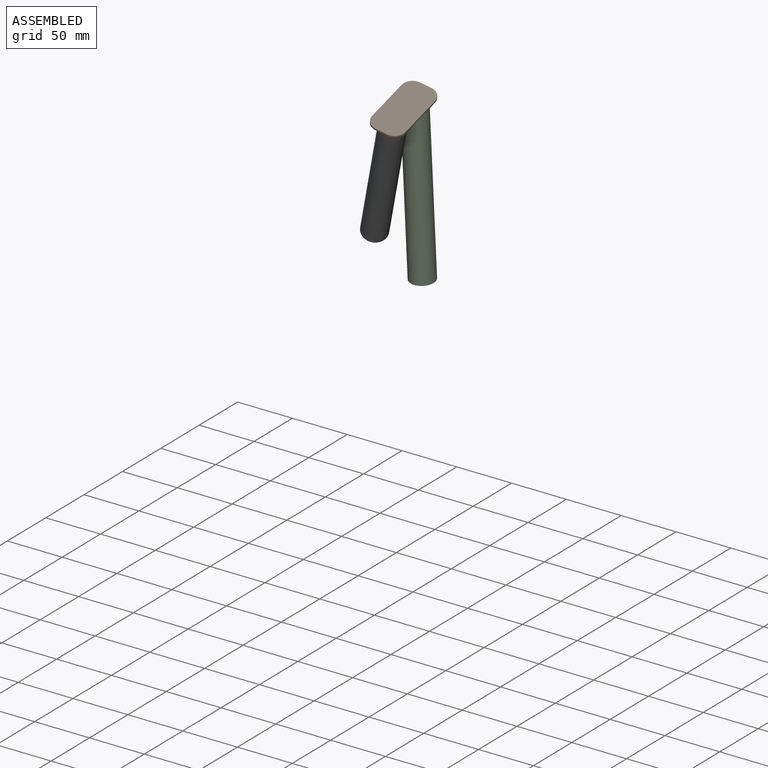
[diagram: assembled view]
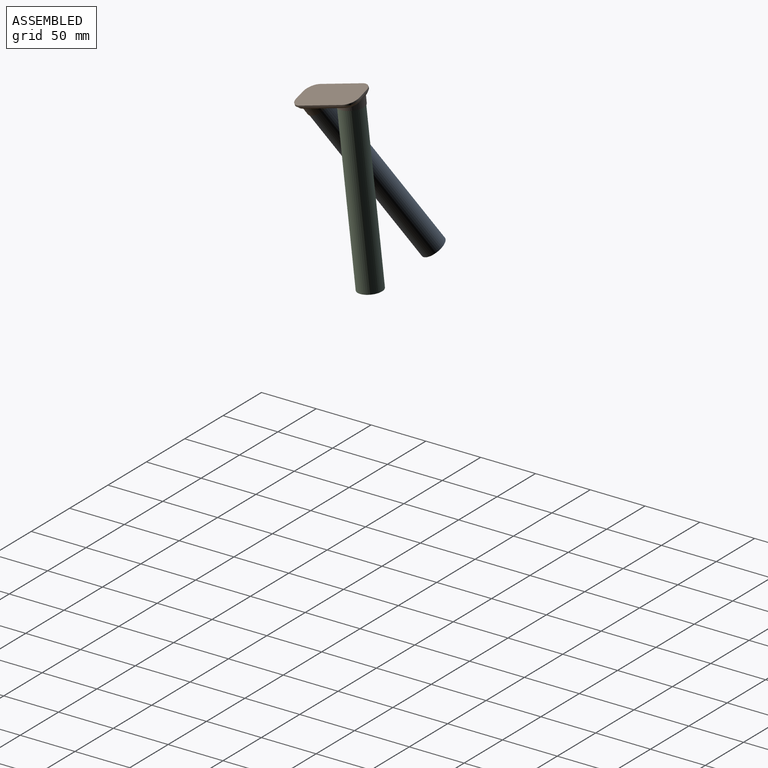
[diagram: assembled view, second angle]
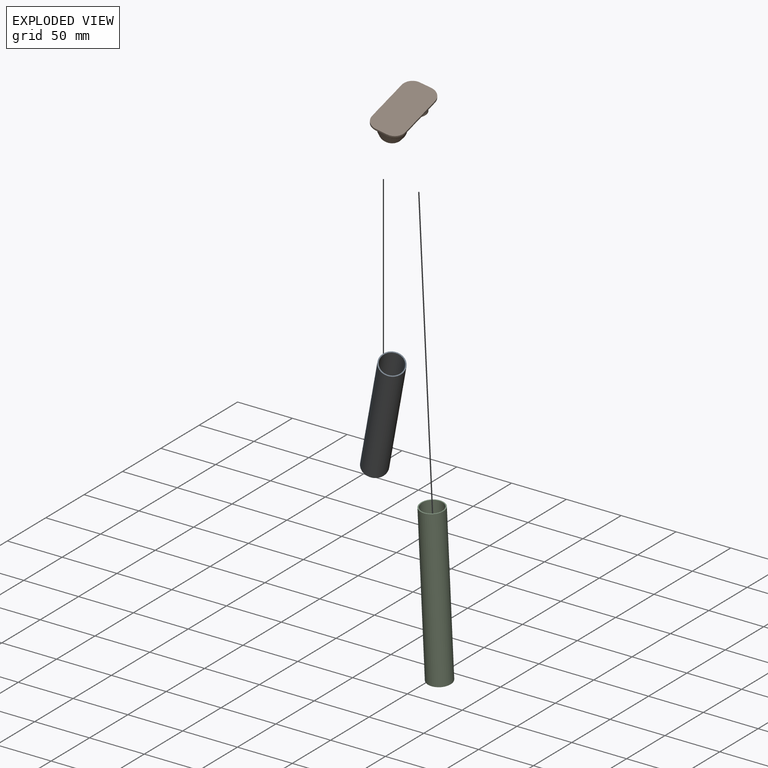
[diagram: exploded view]
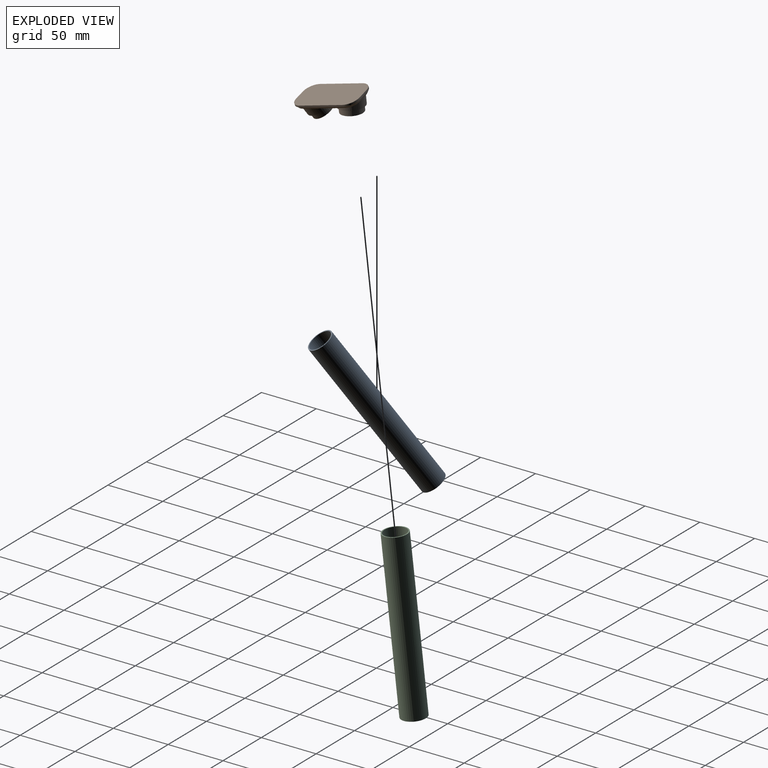
[diagram: exploded view, second angle]
ASSEMBLY  parts=3 mates=2
PART A: 4 faces, bbox 22x22x150 mm
  f0: cylinder r=10mm len=150mm, axis (0,0,-1), area 9424.8mm2, adj f2,f3
  f1: cylinder r=11mm len=150mm, axis (0,0,-1), area 10367.3mm2, adj f2,f3
  f2: plane 22x22mm, normal (0,0,1), area 66mm2, adj f0,f1
  f3: plane 22x22mm, normal (0,0,-1), area 66mm2, adj f0,f1
PART B: 30 faces, bbox 60x30x18.7 mm
  f0: plane 10x1.62mm, normal (-1,0,0), area 16.2mm2, adj f1,f7,f9,f10
  f1: cylinder r=10mm len=10mm, axis (0,0,-1), area 25.4mm2, adj f0,f2,f9,f12
  f2: plane 40x1.62mm, normal (0,-1,0), area 64.7mm2, adj f1,f3,f9,f14
  f3: cylinder r=10mm len=10mm, axis (0,0,-1), area 25.4mm2, adj f2,f4,f9,f16
  f4: plane 10x1.62mm, normal (1,0,0), area 16.2mm2, adj f3,f5,f9,f17
  f5: cylinder r=10mm len=10mm, axis (0,0,-1), area 25.4mm2, adj f4,f6,f9,f15
  f6: plane 40x1.62mm, normal (0,1,0), area 64.7mm2, adj f5,f7,f9,f13
  f7: cylinder r=10mm len=10mm, axis (0,0,-1), area 25.4mm2, adj f0,f6,f9,f11
  f8: plane 56x26mm, normal (0,0,1), area 540.9mm2, adj f10,f11,f12,f13,f14,f15,f16,f17
  f9: plane 60x30mm, normal (0,0,-1), area 1714.2mm2, adj f0,f1,f2,f3,f4,f5,f6,f7
  f10: plane 10x2.38mm, normal (-0.77,0,0.64), area 31.1mm2, adj f0,f8,f11,f12
  f11: cone r=8mm half-angle=40deg, axis (0,0,-1), area 44mm2, adj f7,f8,f10,f13
  f12: cone r=8mm half-angle=40deg, axis (0,0,-1), area 44mm2, adj f1,f8,f10,f14
  f13: plane 40x2.38mm, normal (0,0.77,0.64), area 124.5mm2, adj f6,f8,f11,f15
  f14: plane 40x2.38mm, normal (0,-0.77,0.64), area 124.5mm2, adj f2,f8,f12,f16
  f15: cone r=8mm half-angle=40deg, axis (0,0,-1), area 44mm2, adj f5,f8,f13,f17
  f16: cone r=8mm half-angle=40deg, axis (0,0,-1), area 44mm2, adj f3,f8,f14,f17
  f17: plane 10x2.38mm, normal (0.77,0,0.64), area 31mm2, adj f4,f8,f15,f16,f21
  f18: plane 22.64x22.58mm, normal (0.18,-0.19,0.97), area 110.7mm2, adj f19,f23
  f19: cylinder r=11.5mm len=24.2mm, axis (-0.18,0.19,-0.97), area 393.5mm2, adj f8,f18
  f20: plane 22.64x22.58mm, normal (-0.18,0.19,0.97), area 110.7mm2, adj f21,f27
  f21: cylinder r=11.5mm len=24.22mm, axis (0.18,-0.19,-0.97), area 400.5mm2, adj f8,f17,f20
  f22: cylinder r=8.35mm len=17.35mm, axis (-0.18,0.19,-0.97), area 262.3mm2, adj f24,f25
  f23: cylinder r=9.85mm len=20.29mm, axis (-0.18,0.19,-0.97), area 309.4mm2, adj f18,f24
  f24: plane 19.39x19.34mm, normal (0.18,-0.19,0.97), area 85.8mm2, adj f22,f23
  f25: plane 16.44x16.4mm, normal (0.18,-0.19,0.97), area 219mm2, adj f22
  f26: cylinder r=8.35mm len=17.35mm, axis (0.18,-0.19,-0.97), area 262.3mm2, adj f28,f29
  f27: cylinder r=9.85mm len=20.29mm, axis (0.18,-0.19,-0.97), area 309.4mm2, adj f20,f28
  f28: plane 19.39x19.34mm, normal (-0.18,0.19,0.97), area 85.8mm2, adj f26,f27
  f29: plane 16.44x16.4mm, normal (-0.18,0.19,0.97), area 219mm2, adj f26
PART C: same geometry as A
PLACE A rot(axis=(-0.77,-0.64,0.02),145.2deg) t=(-128.2,-51.13,78.93)mm
PLACE B rot(axis=(-0.7,-0.72,-0.02),160.1deg) t=(-111.24,-67.32,80.44)mm
PLACE C rot(axis=(0.97,0.23,0),5.8deg) t=(-131.16,-7.34,-62.19)mm
MATE cylindrical B.f21 <-> C.f1  axis (-0.02,0.1,-0.99) through (-127.63,-22.03,87.02)mm
MATE cylindrical B.f19 <-> A.f1  axis (-0.4,0.41,-0.82) through (-128.15,-51.18,79.03)mm
